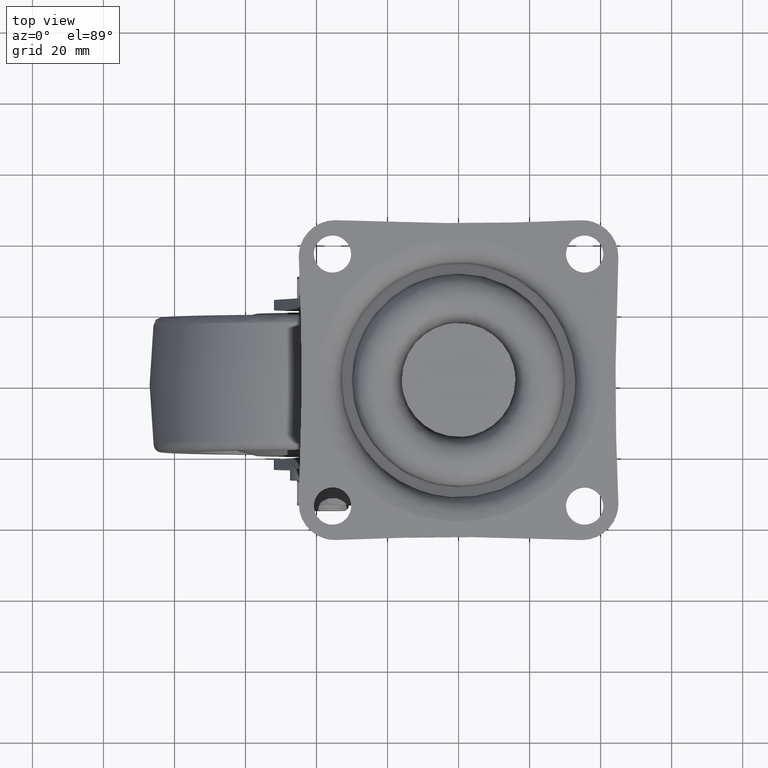
[diagram: clean part render]
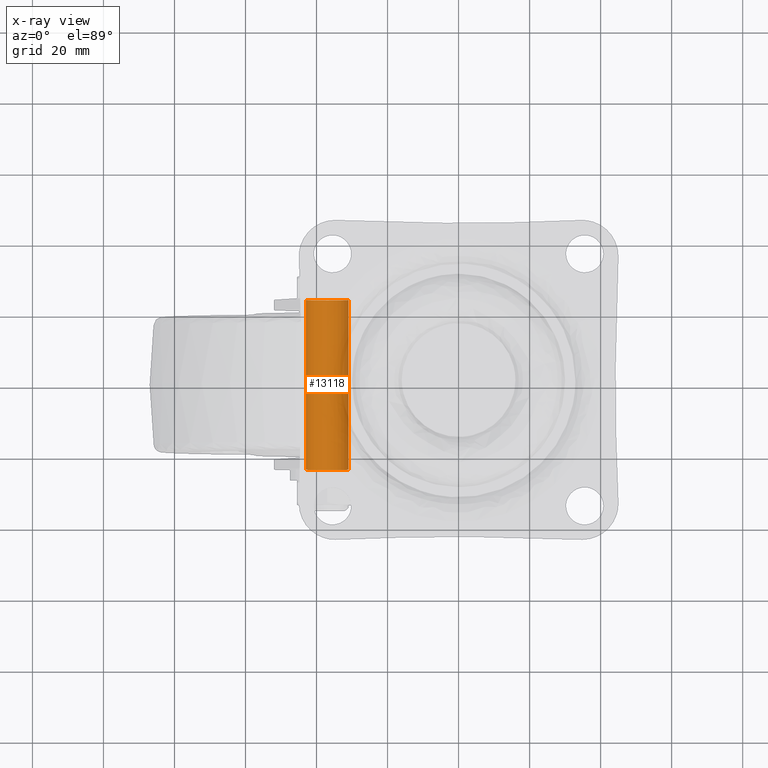
[diagram: x-ray — body ghosted, one internal face saturated and labeled with its STEP entity id]
A machine part, top view, then the same camera in x-ray: the body is ghosted and one INTERNAL B-rep face — a face not visible from any outside direction — is saturated and labeled: STEP entity #13118.
In plain terms, the highlighted face is a freeform B-spline surface patch.
Its self-contained STEP definition (entity closure, byte-faithful):
#12791=CARTESIAN_POINT('',(-37.0,23.899999999999999,-86.000035999997635));
#12792=VERTEX_POINT('',#12791);
#12793=CARTESIAN_POINT('',(-42.988844723369091,23.900000000000009,-80.366293435197036));
#12794=VERTEX_POINT('',#12793);
#12795=CARTESIAN_POINT('',(-37.0,23.899999999999999,-86.000035999997635));
#12796=CARTESIAN_POINT('',(-42.644270266623302,23.900000000000002,-86.000035999997621));
#12797=CARTESIAN_POINT('',(-42.988844723369098,23.900000000000002,-80.366293435197036));
#12805=(BOUNDED_CURVE()B_SPLINE_CURVE(2,(#12795,#12796,#12797),.UNSPECIFIED.,.F.,.U.)B_SPLINE_CURVE_WITH_KNOTS((3,3),(0.500000000000000,0.739332962234972),.UNSPECIFIED.)CURVE()GEOMETRIC_REPRESENTATION_ITEM()RATIONAL_B_SPLINE_CURVE((1.0,0.719603993291362,0.976072041658207))REPRESENTATION_ITEM(''));
#12806=EDGE_CURVE('',#12792,#12794,#12805,.T.);
#12825=CARTESIAN_POINT('',(-31.011155276630909,23.899999999999999,-79.633706564798246));
#12826=VERTEX_POINT('',#12825);
#12840=CARTESIAN_POINT('',(-31.011155276630902,23.900000000000002,-79.633706564798260));
#12841=CARTESIAN_POINT('',(-30.999963999999999,23.900000000000006,-79.816682320184881));
#12842=CARTESIAN_POINT('',(-30.999963999999999,23.899999999999999,-79.999999999997641));
#12843=CARTESIAN_POINT('',(-30.999963999999999,23.899999999999995,-86.000035999997650));
#12844=CARTESIAN_POINT('',(-37.0,23.899999999999999,-86.000035999997635));
#12852=(BOUNDED_CURVE()B_SPLINE_CURVE(2,(#12840,#12841,#12842,#12843,#12844),.UNSPECIFIED.,.F.,.U.)B_SPLINE_CURVE_WITH_KNOTS((3,2,3),(0.239332962234972,0.250000000000000,0.500000000000000),.UNSPECIFIED.)CURVE()GEOMETRIC_REPRESENTATION_ITEM()RATIONAL_B_SPLINE_CURVE((0.976072041658208,0.987502787895185,1.0,0.707106781186547,1.0))REPRESENTATION_ITEM(''));
#12853=EDGE_CURVE('',#12826,#12792,#12852,.T.);
#13052=CARTESIAN_POINT('',(-31.011155276616059,-25.095000000000010,-79.633706565041081));
#13053=CARTESIAN_POINT('',(-30.644861841659491,-25.095000000000010,-85.622551288425029));
#13054=CARTESIAN_POINT('',(-36.633706565043440,-25.095000000000010,-85.988844723381590));
#13055=CARTESIAN_POINT('',(-42.622551288427381,-25.095000000000010,-86.355138158338150));
#13056=CARTESIAN_POINT('',(-42.988844723383941,-25.095000000000010,-80.366293434954201));
#13057=CARTESIAN_POINT('',(-31.011155276616059,25.124875000000010,-79.633706565041081));
#13058=CARTESIAN_POINT('',(-30.644861841659491,25.124874999999999,-85.622551288425029));
#13059=CARTESIAN_POINT('',(-36.633706565043440,25.124875000000010,-85.988844723381590));
#13060=CARTESIAN_POINT('',(-42.622551288427381,25.124874999999999,-86.355138158338150));
#13061=CARTESIAN_POINT('',(-42.988844723383941,25.124875000000010,-80.366293434954201));
#13069=(BOUNDED_SURFACE()B_SPLINE_SURFACE(2,1,((#13052,#13057),(#13053,#13058),(#13054,#13059),(#13055,#13060),(#13056,#13061)),.UNSPECIFIED.,.F.,.F.,.U.)B_SPLINE_SURFACE_WITH_KNOTS((3,2,3),(2,2),(0.0,9.941185143707267,19.882370287414538),(0.0,50.219875000000023),.UNSPECIFIED.)GEOMETRIC_REPRESENTATION_ITEM()RATIONAL_B_SPLINE_SURFACE(((1.0,1.0),(0.707106781186548,0.707106781186548),(1.0,1.0),(0.707106781186548,0.707106781186548),(1.0,1.0)))REPRESENTATION_ITEM('')SURFACE());
#13070=CARTESIAN_POINT('',(-31.011155276630909,-23.899999999999999,-79.633706564798246));
#13071=VERTEX_POINT('',#13070);
#13072=CARTESIAN_POINT('',(-37.0,-23.899999999999999,-86.000035999997635));
#13073=VERTEX_POINT('',#13072);
#13074=CARTESIAN_POINT('',(-31.011155276630905,-23.900000000000002,-79.633706564798231));
#13075=CARTESIAN_POINT('',(-30.999963999999995,-23.900000000000006,-79.816682320184867));
#13076=CARTESIAN_POINT('',(-30.999963999999999,-23.899999999999999,-79.999999999997641));
#13077=CARTESIAN_POINT('',(-30.999963999999999,-23.899999999999995,-86.000035999997650));
#13078=CARTESIAN_POINT('',(-37.0,-23.899999999999999,-86.000035999997635));
#13086=(BOUNDED_CURVE()B_SPLINE_CURVE(2,(#13074,#13075,#13076,#13077,#13078),.UNSPECIFIED.,.F.,.U.)B_SPLINE_CURVE_WITH_KNOTS((3,2,3),(0.239332962234972,0.250000000000000,0.500000000000000),.UNSPECIFIED.)CURVE()GEOMETRIC_REPRESENTATION_ITEM()RATIONAL_B_SPLINE_CURVE((0.976072041658207,0.987502787895185,1.0,0.707106781186547,1.0))REPRESENTATION_ITEM(''));
#13087=EDGE_CURVE('',#13071,#13073,#13086,.T.);
#13088=ORIENTED_EDGE('',*,*,#13087,.T.);
#13089=CARTESIAN_POINT('',(-42.988844723369098,-23.899999999999999,-80.366293435197036));
#13090=VERTEX_POINT('',#13089);
#13091=CARTESIAN_POINT('',(-37.0,-23.899999999999999,-86.000035999997635));
#13092=CARTESIAN_POINT('',(-42.644270266623302,-23.900000000000002,-86.000035999997621));
#13093=CARTESIAN_POINT('',(-42.988844723369098,-23.900000000000002,-80.366293435197036));
#13101=(BOUNDED_CURVE()B_SPLINE_CURVE(2,(#13091,#13092,#13093),.UNSPECIFIED.,.F.,.U.)B_SPLINE_CURVE_WITH_KNOTS((3,3),(0.500000000000000,0.739332962234972),.UNSPECIFIED.)CURVE()GEOMETRIC_REPRESENTATION_ITEM()RATIONAL_B_SPLINE_CURVE((1.0,0.719603993291362,0.976072041658207))REPRESENTATION_ITEM(''));
#13102=EDGE_CURVE('',#13073,#13090,#13101,.T.);
#13103=ORIENTED_EDGE('',*,*,#13102,.T.);
#13104=CARTESIAN_POINT('',(-42.988844723369098,-23.899999999999999,-80.366293435197036));
#13105=CARTESIAN_POINT('',(-42.988844723369091,23.900000000000009,-80.366293435197036));
#13106=QUASI_UNIFORM_CURVE('',1,(#13104,#13105),.UNSPECIFIED.,.F.,.U.);
#13107=EDGE_CURVE('',#13090,#12794,#13106,.T.);
#13108=ORIENTED_EDGE('',*,*,#13107,.T.);
#13109=ORIENTED_EDGE('',*,*,#12806,.F.);
#13110=ORIENTED_EDGE('',*,*,#12853,.F.);
#13111=CARTESIAN_POINT('',(-31.011155276630909,-23.899999999999999,-79.633706564798246));
#13112=CARTESIAN_POINT('',(-31.011155276630909,23.899999999999999,-79.633706564798246));
#13113=QUASI_UNIFORM_CURVE('',1,(#13111,#13112),.UNSPECIFIED.,.F.,.U.);
#13114=EDGE_CURVE('',#13071,#12826,#13113,.T.);
#13115=ORIENTED_EDGE('',*,*,#13114,.F.);
#13116=EDGE_LOOP('',(#13088,#13103,#13108,#13109,#13110,#13115));
#13117=FACE_OUTER_BOUND('',#13116,.T.);
#13118=ADVANCED_FACE('',(#13117),#13069,.T.);